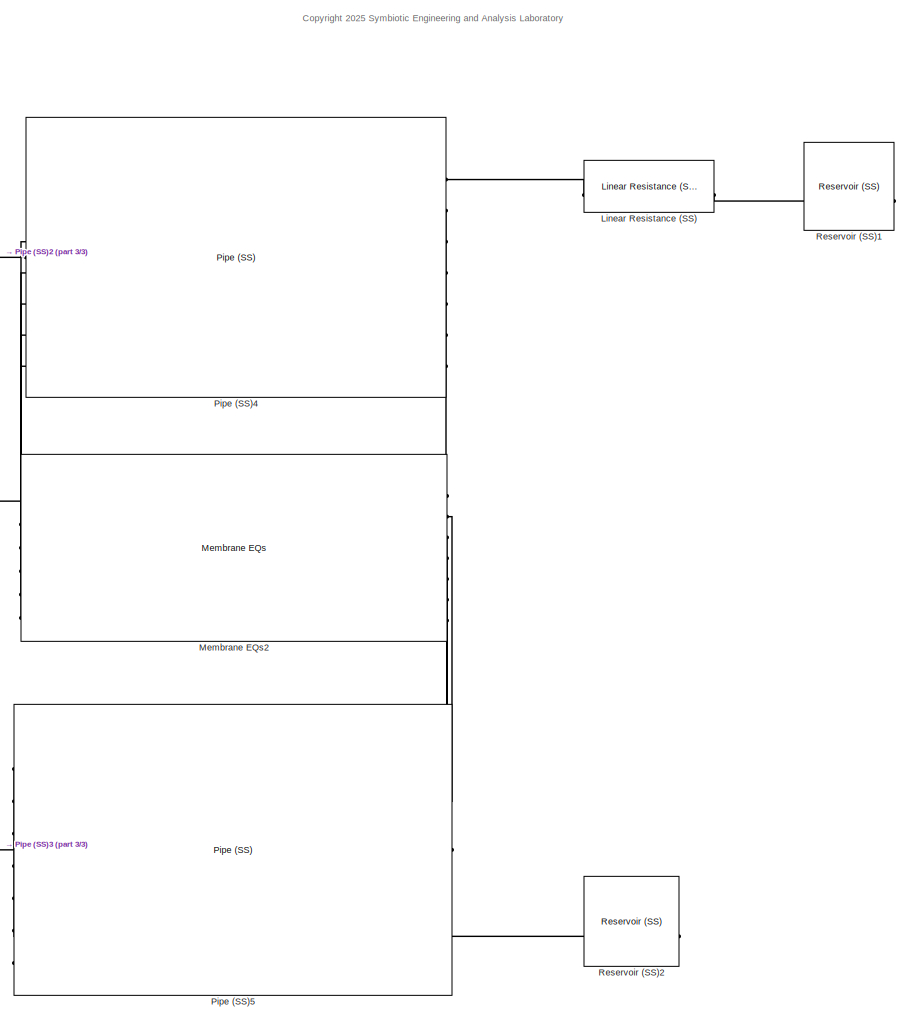
[diagram: root canvas - part 1/3, right side, full height]
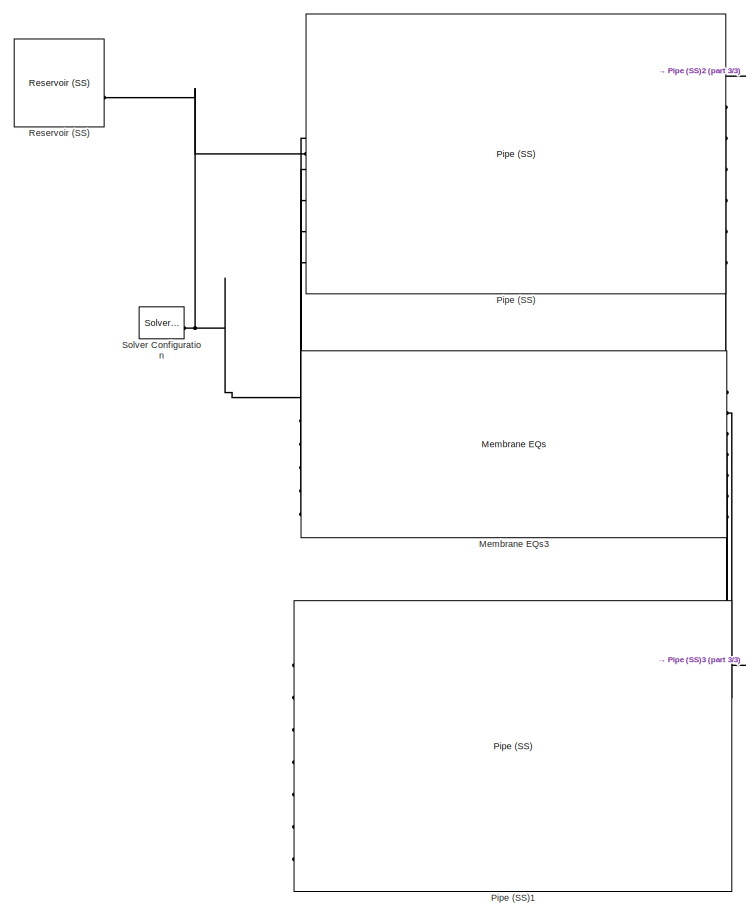
[diagram: root canvas - part 2/3, left side, full height]
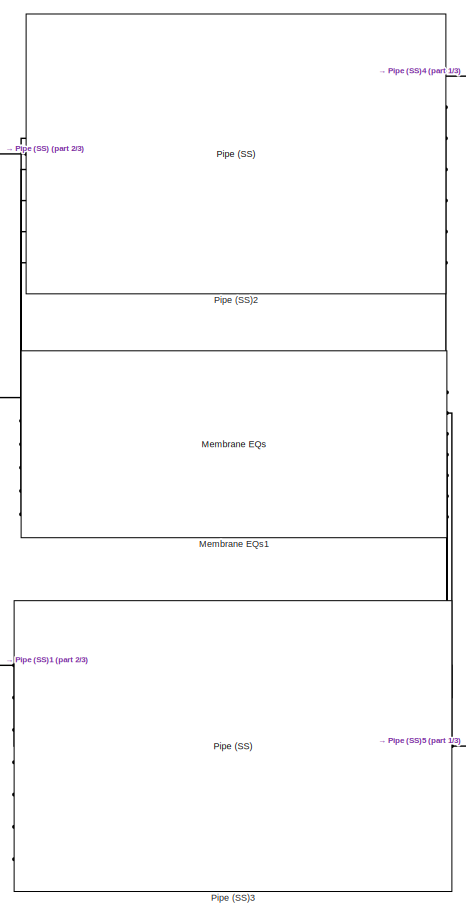
[diagram: root canvas - part 3/3, center side, full height]
MODEL slx_c944f5df8bf2
KIND model
CONFIG AbsTol = 1e-3
CONFIG EnableMultiTasking = off
CONFIG FixedStep = auto
CONFIG MaxStep = auto
CONFIG MinStep = auto
CONFIG RelTol = 1e-3
CONFIG SampleTimeConstraint = Unconstrained
CONFIG SolverName = VariableStepAuto
CONFIG StartTime = 0.0
CONFIG StopTime = 3600
BLOCK [Reference] Linear Resistance (SS)  REF=customization_lib/solution/elements/Linear Resistance
(SS)
  SourceBlock = customization_lib/solution/elements/Linear Resistance\n(SS)
  SourceProductName = Customization
  SourceType = Linear Resistance\n(SS)
BLOCK [Reference] Membrane EQs1  REF=customization_lib/membranes/Membrane EQs
  SourceBlock = customization_lib/membranes/Membrane EQs
  SourceProductName = Customization
  SourceType = Membrane EQs
BLOCK [Reference] Membrane EQs2  REF=customization_lib/membranes/Membrane EQs
  SourceBlock = customization_lib/membranes/Membrane EQs
  SourceProductName = Customization
  SourceType = Membrane EQs
BLOCK [Reference] Membrane EQs3  REF=customization_lib/membranes/Membrane EQs
  SourceBlock = customization_lib/membranes/Membrane EQs
  SourceProductName = Customization
  SourceType = Membrane EQs
BLOCK [Reference] Pipe (SS)  REF=customization_lib/solution/elements/Pipe (SS)
  SourceBlock = customization_lib/solution/elements/Pipe (SS)
  SourceProductName = Customization
  SourceType = Pipe (SS)
BLOCK [Reference] Pipe (SS)1  REF=customization_lib/solution/elements/Pipe (SS)
  SourceBlock = customization_lib/solution/elements/Pipe (SS)
  SourceProductName = Customization
  SourceType = Pipe (SS)
BLOCK [Reference] Pipe (SS)2  REF=customization_lib/solution/elements/Pipe (SS)
  SourceBlock = customization_lib/solution/elements/Pipe (SS)
  SourceProductName = Customization
  SourceType = Pipe (SS)
BLOCK [Reference] Pipe (SS)3  REF=customization_lib/solution/elements/Pipe (SS)
  SourceBlock = customization_lib/solution/elements/Pipe (SS)
  SourceProductName = Customization
  SourceType = Pipe (SS)
BLOCK [Reference] Pipe (SS)4  REF=customization_lib/solution/elements/Pipe (SS)
  SourceBlock = customization_lib/solution/elements/Pipe (SS)
  SourceProductName = Customization
  SourceType = Pipe (SS)
BLOCK [Reference] Pipe (SS)5  REF=customization_lib/solution/elements/Pipe (SS)
  SourceBlock = customization_lib/solution/elements/Pipe (SS)
  SourceProductName = Customization
  SourceType = Pipe (SS)
BLOCK [Reference] Reservoir (SS)  REF=customization_lib/solution/elements/Reservoir (SS)
  SourceBlock = customization_lib/solution/elements/Reservoir (SS)
  SourceProductName = Customization
  SourceType = Reservoir (SS)
BLOCK [Reference] Reservoir (SS)1  REF=customization_lib/solution/elements/Reservoir (SS)
  NameLocation = top
  SourceBlock = customization_lib/solution/elements/Reservoir (SS)
  SourceProductName = Customization
  SourceType = Reservoir (SS)
BLOCK [Reference] Reservoir (SS)2  REF=customization_lib/solution/elements/Reservoir (SS)
  NameLocation = top
  SourceBlock = customization_lib/solution/elements/Reservoir (SS)
  SourceProductName = Customization
  SourceType = Reservoir (SS)
BLOCK [Reference] Solver Configuration  REF=nesl_utility/Solver
Configuration
  SourceBlock = nesl_utility/Solver\nConfiguration
  SourceType = Solver\nConfiguration
ANNOTATION (root): <copyright redacted>
PLINE Linear Resistance (SS):LConn1 -- Pipe (SS)4:RConn1
PLINE Linear Resistance (SS):RConn1 -- Reservoir (SS)1:LConn1
PNET net1: Membrane EQs1:LConn1 -- Pipe (SS)2:LConn1 -- Pipe (SS):RConn1
PLINE Membrane EQs1:LConn2 -- Pipe (SS)2:RConn3
PLINE Membrane EQs1:LConn3 -- Pipe (SS)2:RConn4
PLINE Membrane EQs1:LConn4 -- Pipe (SS)2:RConn5
PLINE Membrane EQs1:LConn5 -- Pipe (SS)2:RConn6
PLINE Membrane EQs1:LConn6 -- Pipe (SS)2:RConn7
PLINE Membrane EQs1:RConn1 -- Pipe (SS)2:RConn2
PLINE Membrane EQs1:RConn2 -- Pipe (SS)3:RConn2
PLINE Membrane EQs1:RConn3 -- Pipe (SS)3:RConn3
PLINE Membrane EQs1:RConn4 -- Pipe (SS)3:RConn4
PLINE Membrane EQs1:RConn5 -- Pipe (SS)3:RConn5
PLINE Membrane EQs1:RConn6 -- Pipe (SS)3:RConn6
PLINE Membrane EQs1:RConn7 -- Pipe (SS)3:RConn7
PNET net2: Membrane EQs2:LConn1 -- Pipe (SS)2:RConn1 -- Pipe (SS)4:LConn1
PLINE Membrane EQs2:LConn2 -- Pipe (SS)4:RConn3
PLINE Membrane EQs2:LConn3 -- Pipe (SS)4:RConn4
PLINE Membrane EQs2:LConn4 -- Pipe (SS)4:RConn5
PLINE Membrane EQs2:LConn5 -- Pipe (SS)4:RConn6
PLINE Membrane EQs2:LConn6 -- Pipe (SS)4:RConn7
PLINE Membrane EQs2:RConn1 -- Pipe (SS)4:RConn2
PLINE Membrane EQs2:RConn2 -- Pipe (SS)5:RConn2
PLINE Membrane EQs2:RConn3 -- Pipe (SS)5:RConn3
PLINE Membrane EQs2:RConn4 -- Pipe (SS)5:RConn4
PLINE Membrane EQs2:RConn5 -- Pipe (SS)5:RConn5
PLINE Membrane EQs2:RConn6 -- Pipe (SS)5:RConn6
PLINE Membrane EQs2:RConn7 -- Pipe (SS)5:RConn7
PNET net3: Membrane EQs3:LConn1 -- Pipe (SS):LConn1 -- Reservoir (SS):LConn1 -- Solver Configuration:RConn1
PLINE Membrane EQs3:LConn2 -- Pipe (SS):RConn3
PLINE Membrane EQs3:LConn3 -- Pipe (SS):RConn4
PLINE Membrane EQs3:LConn4 -- Pipe (SS):RConn5
PLINE Membrane EQs3:LConn5 -- Pipe (SS):RConn6
PLINE Membrane EQs3:LConn6 -- Pipe (SS):RConn7
PLINE Membrane EQs3:RConn1 -- Pipe (SS):RConn2
PLINE Membrane EQs3:RConn2 -- Pipe (SS)1:RConn2
PLINE Membrane EQs3:RConn3 -- Pipe (SS)1:RConn3
PLINE Membrane EQs3:RConn4 -- Pipe (SS)1:RConn4
PLINE Membrane EQs3:RConn5 -- Pipe (SS)1:RConn5
PLINE Membrane EQs3:RConn6 -- Pipe (SS)1:RConn6
PLINE Membrane EQs3:RConn7 -- Pipe (SS)1:RConn7
PLINE Pipe (SS)1:RConn1 -- Pipe (SS)3:LConn1
PLINE Pipe (SS)3:RConn1 -- Pipe (SS)5:LConn1
PLINE Pipe (SS)5:RConn1 -- Reservoir (SS)2:LConn1
note: PNET lines group multi-terminal physical nets as a canonical sorted terminal list (undirected conserving connections); 2-terminal nets keep the pairwise PLINE form
